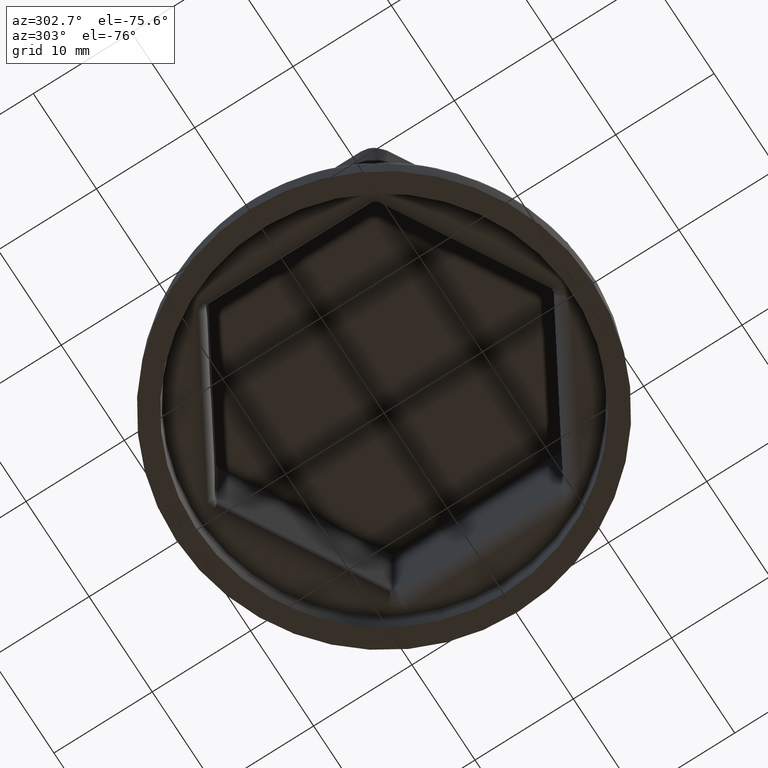
[diagram: clean part render]
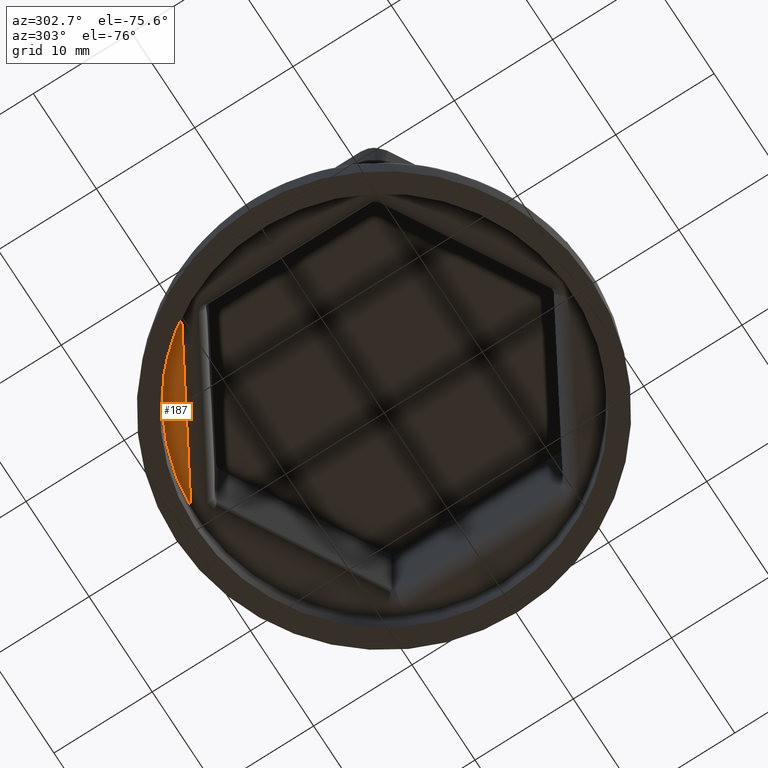
[diagram: same view with one face highlighted and labeled with its STEP entity id]
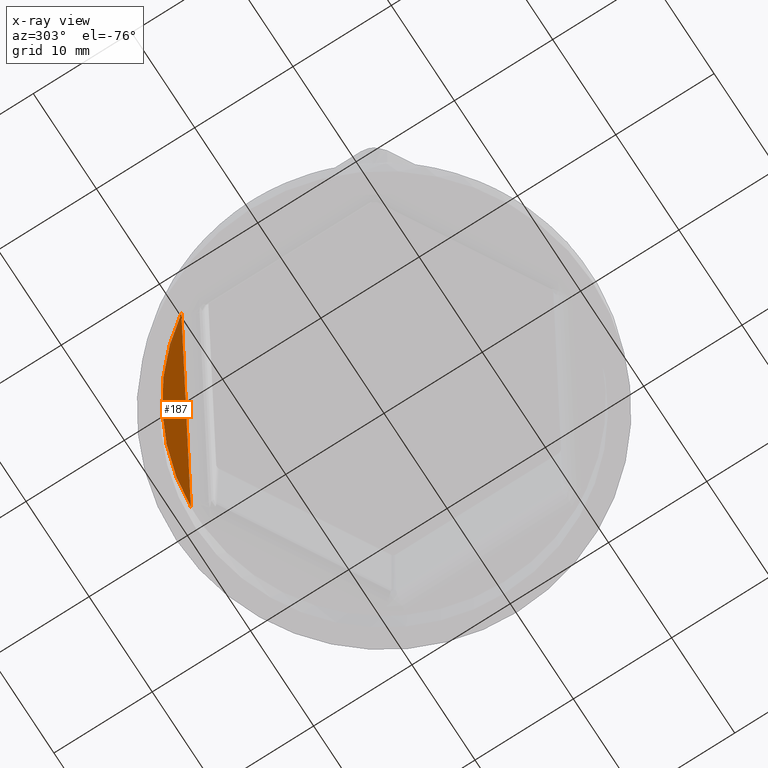
[diagram: x-ray of the same camera — body ghosted, the highlighted face saturated]
A machine part, auxiliary view. The second image highlights one B-rep face of the part: STEP entity #187.
The next image is the same camera in x-ray: the body ghosted, the highlighted face saturated — about 0% of this face is hidden behind the body in this view.
In plain terms, the highlighted planar face has unit normal (0, 0, 1).
Its self-contained STEP definition (entity closure, byte-faithful):
#187 = ADVANCED_FACE( '', ( #428 ), #429, .F. );
#428 = FACE_OUTER_BOUND( '', #3735, .T. );
#429 = PLANE( '', #3736 );
#3735 = EDGE_LOOP( '', ( #5102, #5103, #5104, #5105 ) );
#3736 = AXIS2_PLACEMENT_3D( '', #5106, #5107, #5108 );
#5102 = ORIENTED_EDGE( '', *, *, #5265, .F. );
#5103 = ORIENTED_EDGE( '', *, *, #5276, .F. );
#5104 = ORIENTED_EDGE( '', *, *, #5274, .F. );
#5105 = ORIENTED_EDGE( '', *, *, #5277, .F. );
#5106 = CARTESIAN_POINT( '', ( 0.000000000000000, 0.000000000000000, 3.30000000000000 ) );
#5107 = DIRECTION( '', ( 0.000000000000000, 0.000000000000000, 1.00000000000000 ) );
#5108 = DIRECTION( '', ( 1.00000000000000, 0.000000000000000, 0.000000000000000 ) );
#5265 = EDGE_CURVE( '', #5603, #5615, #5616, .T. );
#5274 = EDGE_CURVE( '', #5625, #5622, #5627, .T. );
#5276 = EDGE_CURVE( '', #5622, #5603, #5629, .F. );
#5277 = EDGE_CURVE( '', #5615, #5625, #5630, .F. );
#5603 = VERTEX_POINT( '', #6192 );
#5615 = VERTEX_POINT( '', #6227 );
#5616 = CIRCLE( '', #6228, 19.0000000000000 );
#5622 = VERTEX_POINT( '', #6234 );
#5625 = VERTEX_POINT( '', #6238 );
#5627 = LINE( '', #6240, #6241 );
#5629 = ELLIPSE( '', #6243, 2.50050774725796, 2.50000000000000 );
#5630 = ELLIPSE( '', #6244, 2.50050774725796, 2.50000000000000 );
#6192 = CARTESIAN_POINT( '', ( -1.05261043490567, 18.9708199947268, 3.30000000000000 ) );
#6227 = CARTESIAN_POINT( '', ( -15.9029068286024, 10.3969973742803, 3.30000000000000 ) );
#6228 = AXIS2_PLACEMENT_3D( '', #8125, #8126, #8127 );
#6234 = CARTESIAN_POINT( '', ( -1.24980961894548, 18.8683722733218, 3.30000000000000 ) );
#6238 = CARTESIAN_POINT( '', ( -15.7155849072859, 10.5165530165619, 3.30000000000000 ) );
#6240 = CARTESIAN_POINT( '', ( -8.48269726311569, 14.6924626449418, 3.30000000000000 ) );
#6241 = VECTOR( '', #8150, 1000.00000000000 );
#6243 = AXIS2_PLACEMENT_3D( '', #8154, #8155, #8156 );
#6244 = AXIS2_PLACEMENT_3D( '', #8157, #8158, #8159 );
#8125 = CARTESIAN_POINT( '', ( 0.000000000000000, 0.000000000000000, 3.30000000000000 ) );
#8126 = DIRECTION( '', ( 0.000000000000000, 0.000000000000000, 1.00000000000000 ) );
#8127 = DIRECTION( '', ( 1.00000000000000, 0.000000000000000, 0.000000000000000 ) );
#8150 = DIRECTION( '', ( 0.866025403784439, 0.500000000000000, 0.000000000000000 ) );
#8154 = CARTESIAN_POINT( '', ( 6.93784188700717E-015, 16.7027591141219, 3.30000000000000 ) );
#8155 = DIRECTION( '', ( 0.000000000000000, 0.000000000000000, 1.00000000000000 ) );
#8156 = DIRECTION( '', ( 2.48682707043637E-017, 1.00000000000000, 0.000000000000000 ) );
#8157 = CARTESIAN_POINT( '', ( -14.4650137061216, 8.35137955706095, 3.30000000000000 ) );
#8158 = DIRECTION( '', ( 0.000000000000000, 0.000000000000000, 1.00000000000000 ) );
#8159 = DIRECTION( '', ( -0.866025403784439, 0.500000000000000, 0.000000000000000 ) );